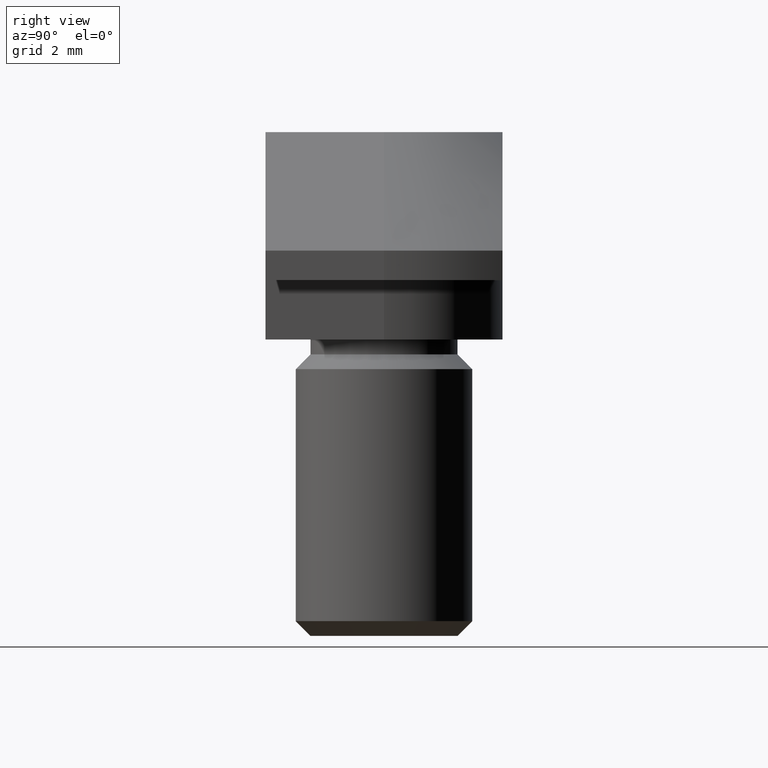
[diagram: clean part render]
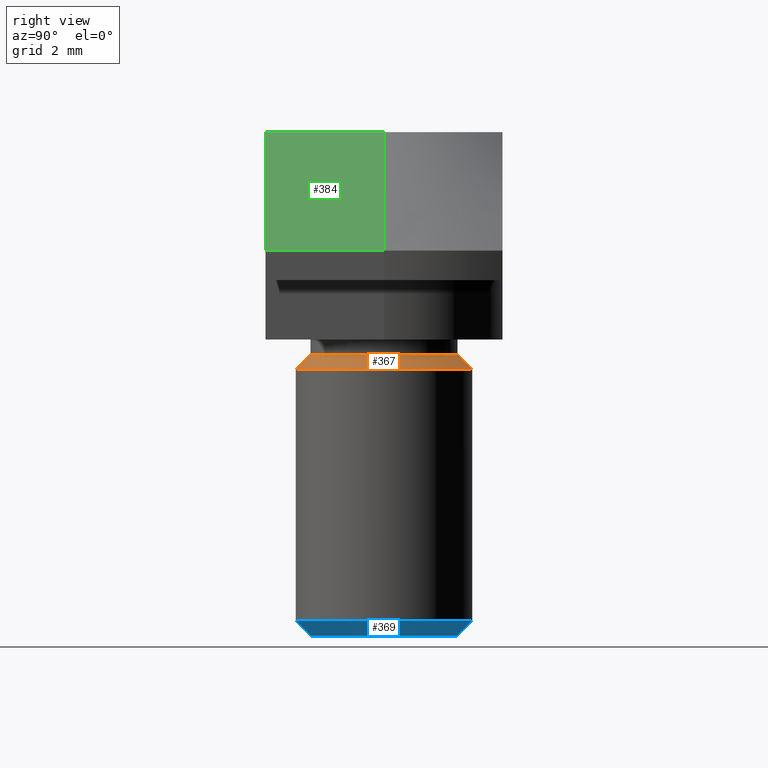
[diagram: same view with three faces highlighted in distinct colors, each labeled with its STEP entity id]
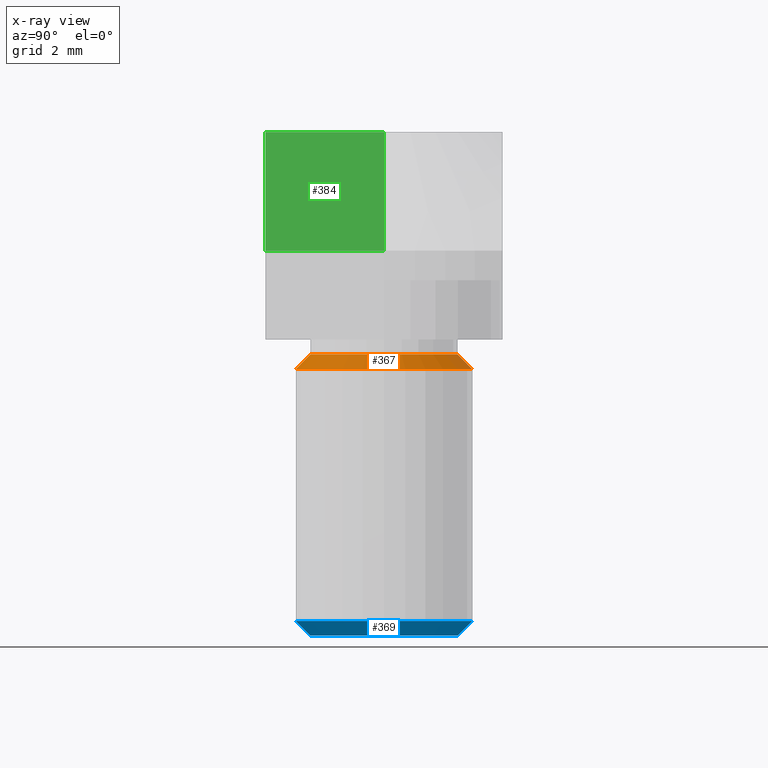
[diagram: x-ray of the same camera — body ghosted, the three highlighted faces saturated]
A machine part, right view with three faces highlighted in distinct colors.
The next image is the same camera in x-ray (body ghosted, the three faces saturated) — at least one of them is partly hidden behind the body in this view.
Their STEP definitions:

[orange] entity #367 — the highlighted conical surface has half-angle 45 deg.
#104=FACE_BOUND('',#133,.T.);
#109=FACE_OUTER_BOUND('',#132,.T.);
#132=EDGE_LOOP('',(#261));
#133=EDGE_LOOP('',(#262));
#160=CIRCLE('',#393,3.);
#161=CIRCLE('',#394,2.5);
#175=VERTEX_POINT('',#544);
#176=VERTEX_POINT('',#546);
#210=EDGE_CURVE('',#175,#175,#160,.T.);
#211=EDGE_CURVE('',#176,#176,#161,.T.);
#261=ORIENTED_EDGE('',*,*,#210,.T.);
#262=ORIENTED_EDGE('',*,*,#211,.T.);
#363=CONICAL_SURFACE('',#392,2.75,45.);
#367=ADVANCED_FACE('',(#109,#104),#363,.T.);
#392=AXIS2_PLACEMENT_3D('',#543,#432,#433);
#393=AXIS2_PLACEMENT_3D('',#545,#434,#435);
#394=AXIS2_PLACEMENT_3D('',#547,#436,#437);
#432=DIRECTION('center_axis',(0.,0.,-1.));
#433=DIRECTION('ref_axis',(1.,0.,0.));
#434=DIRECTION('center_axis',(0.,0.,1.));
#435=DIRECTION('ref_axis',(1.,0.,0.));
#436=DIRECTION('center_axis',(0.,0.,-1.));
#437=DIRECTION('ref_axis',(1.,0.,0.));
#543=CARTESIAN_POINT('Origin',(0.,0.,-7.75));
#544=CARTESIAN_POINT('',(-3.,-3.67394039744206E-16,-8.));
#545=CARTESIAN_POINT('Origin',(0.,0.,-8.));
#546=CARTESIAN_POINT('',(-2.5,3.06161699786838E-16,-7.5));
#547=CARTESIAN_POINT('Origin',(0.,0.,-7.5));

[blue] entity #369 — the highlighted conical surface has half-angle 45 deg.
#106=FACE_BOUND('',#137,.T.);
#111=FACE_OUTER_BOUND('',#136,.T.);
#136=EDGE_LOOP('',(#265));
#137=EDGE_LOOP('',(#266));
#162=CIRCLE('',#396,3.);
#163=CIRCLE('',#398,2.5);
#177=VERTEX_POINT('',#549);
#178=VERTEX_POINT('',#552);
#212=EDGE_CURVE('',#177,#177,#162,.T.);
#213=EDGE_CURVE('',#178,#178,#163,.T.);
#265=ORIENTED_EDGE('',*,*,#212,.T.);
#266=ORIENTED_EDGE('',*,*,#213,.T.);
#364=CONICAL_SURFACE('',#397,2.75,45.);
#369=ADVANCED_FACE('',(#111,#106),#364,.T.);
#396=AXIS2_PLACEMENT_3D('',#550,#440,#441);
#397=AXIS2_PLACEMENT_3D('',#551,#442,#443);
#398=AXIS2_PLACEMENT_3D('',#553,#444,#445);
#440=DIRECTION('center_axis',(0.,0.,-1.));
#441=DIRECTION('ref_axis',(1.,0.,0.));
#442=DIRECTION('center_axis',(0.,0.,1.));
#443=DIRECTION('ref_axis',(1.,0.,0.));
#444=DIRECTION('center_axis',(0.,0.,1.));
#445=DIRECTION('ref_axis',(1.,0.,0.));
#549=CARTESIAN_POINT('',(-3.,3.67394039744206E-16,-16.5));
#550=CARTESIAN_POINT('Origin',(0.,0.,-16.5));
#551=CARTESIAN_POINT('Origin',(0.,0.,-16.75));
#552=CARTESIAN_POINT('',(-2.5,-3.06161699786838E-16,-17.));
#553=CARTESIAN_POINT('Origin',(0.,0.,-17.));

[green] entity #384 — the highlighted planar face has unit normal (0.7071, 0, 0.7071).
#35=LINE('',#616,#69);
#41=LINE('',#637,#75);
#43=LINE('',#641,#77);
#44=LINE('',#642,#78);
#69=VECTOR('',#500,5.65685424949238);
#75=VECTOR('',#520,4.);
#77=VECTOR('',#524,4.);
#78=VECTOR('',#525,5.65685424949238);
#92=PLANE('',#424);
#126=FACE_OUTER_BOUND('',#154,.T.);
#154=EDGE_LOOP('',(#325,#326,#327,#328));
#200=VERTEX_POINT('',#613);
#201=VERTEX_POINT('',#615);
#206=VERTEX_POINT('',#636);
#207=VERTEX_POINT('',#640);
#241=EDGE_CURVE('',#200,#201,#35,.T.);
#251=EDGE_CURVE('',#201,#206,#41,.T.);
#253=EDGE_CURVE('',#200,#207,#43,.T.);
#254=EDGE_CURVE('',#206,#207,#44,.T.);
#325=ORIENTED_EDGE('',*,*,#241,.F.);
#326=ORIENTED_EDGE('',*,*,#253,.T.);
#327=ORIENTED_EDGE('',*,*,#254,.F.);
#328=ORIENTED_EDGE('',*,*,#251,.F.);
#384=ADVANCED_FACE('',(#126),#92,.T.);
#424=AXIS2_PLACEMENT_3D('',#639,#522,#523);
#500=DIRECTION('',(0.707106781186547,0.,-0.707106781186548));
#520=DIRECTION('',(0.,-1.,0.));
#522=DIRECTION('center_axis',(0.707106781186548,0.,0.707106781186548));
#523=DIRECTION('ref_axis',(0.707106781186548,0.,-0.707106781186548));
#524=DIRECTION('',(0.,-1.,0.));
#525=DIRECTION('',(-0.707106781186548,0.,0.707106781186548));
#613=CARTESIAN_POINT('',(4.,0.,0.));
#615=CARTESIAN_POINT('',(8.,0.,-4.));
#616=CARTESIAN_POINT('',(6.,0.,-2.));
#636=CARTESIAN_POINT('',(8.,-4.,-4.));
#637=CARTESIAN_POINT('',(8.,0.,-4.));
#639=CARTESIAN_POINT('Origin',(4.,0.,5.55111512312578E-16));
#640=CARTESIAN_POINT('',(4.,-4.,0.));
#641=CARTESIAN_POINT('',(4.,0.,-3.30907977955027E-23));
#642=CARTESIAN_POINT('',(8.,-4.,-4.));